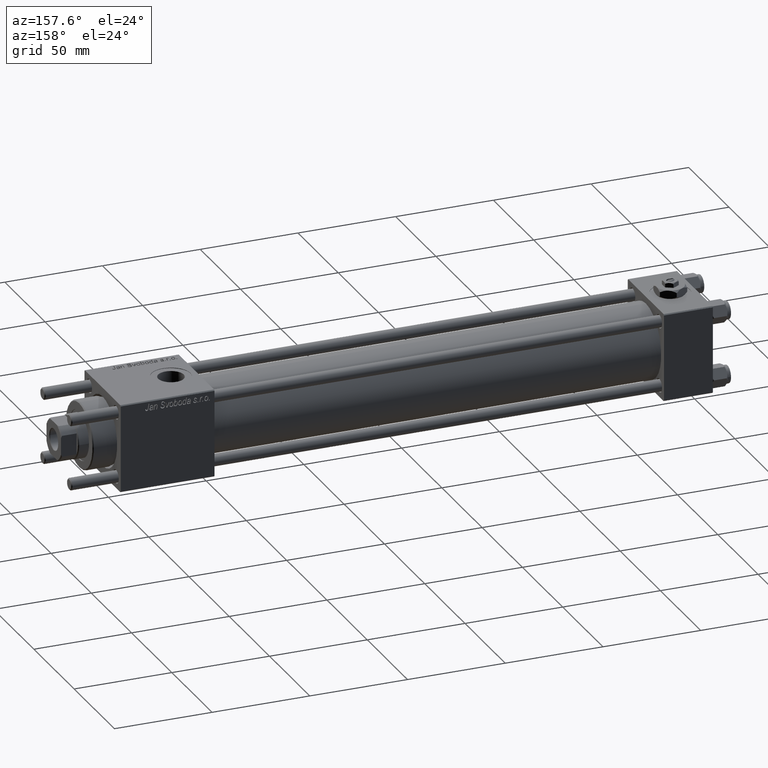
[diagram: clean part render]
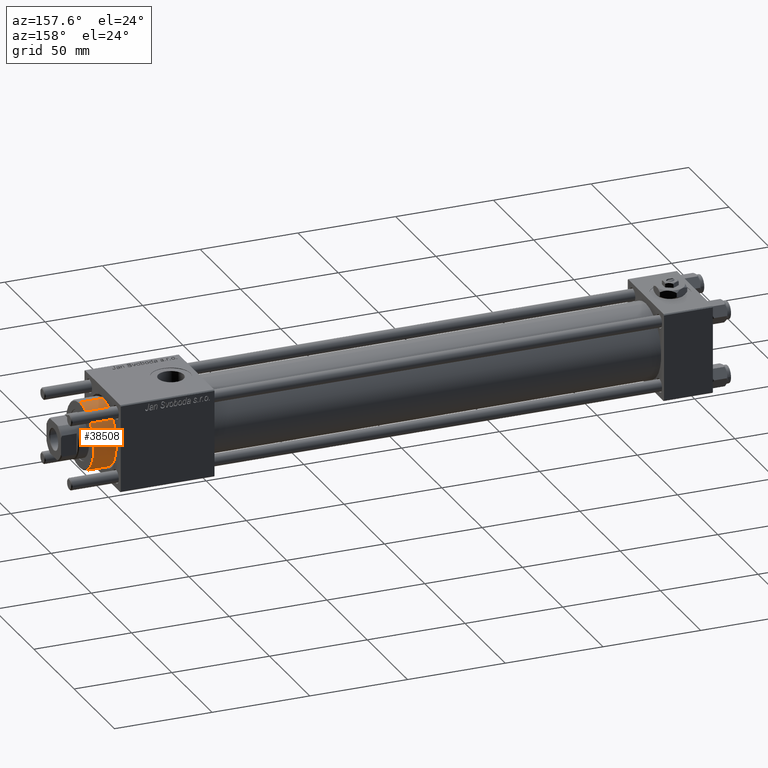
[diagram: same view with one face highlighted and labeled with its STEP entity id]
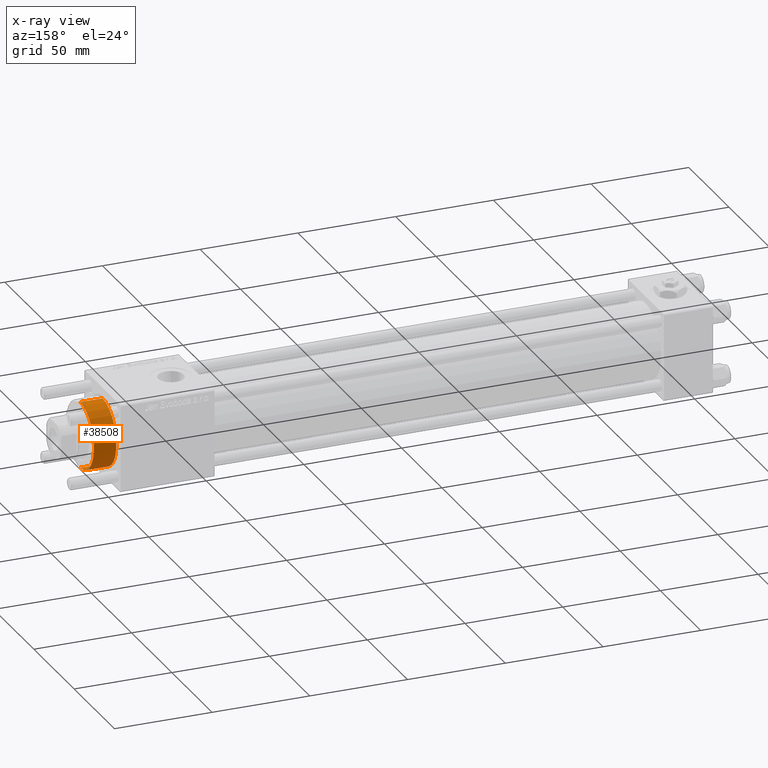
[diagram: x-ray of the same camera — body ghosted, the highlighted face saturated]
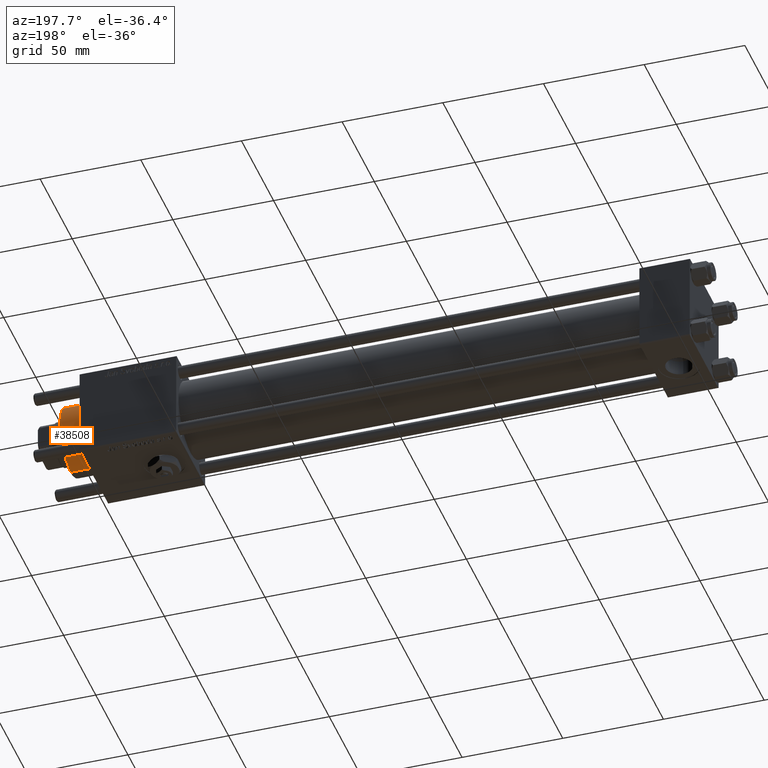
[diagram: same view with one face highlighted and labeled with its STEP entity id]
A machine part, auxiliary view. The second image highlights one B-rep face of the part: STEP entity #38508.
The next image is the same camera in x-ray: the body ghosted, the highlighted face saturated — about 0% of this face is hidden behind the body in this view.
A second angle (auxiliary view) of the same face is appended — the face is thin or edge-on in the first view.
In plain terms, the highlighted cylindrical surface (edge-blend (fillet) strip) has radius 17 mm, axis along (-1, -0, 0).
Its self-contained STEP definition (entity closure, byte-faithful):
#1697 = CIRCLE ( 'NONE', #12502, 17.00000000000000000 ) ;
#2176 = AXIS2_PLACEMENT_3D ( 'NONE', #28615, #5575, #42293 ) ;
#5575 = DIRECTION ( 'NONE',  ( -0.000000000000000000, -0.000000000000000000, -1.000000000000000000 ) ) ;
#6246 = CARTESIAN_POINT ( 'NONE',  ( -17.00000000000000000, 0.000000000000000000, 28.69999999999999929 ) ) ;
#7901 = CARTESIAN_POINT ( 'NONE',  ( 17.00000000000000000, 2.081899558550500280E-15, 40.19999999999999574 ) ) ;
#10122 = CYLINDRICAL_SURFACE ( 'NONE', #2176, 17.00000000000000000 ) ;
#11254 = LINE ( 'NONE', #39476, #44380 ) ;
#11751 = DIRECTION ( 'NONE',  ( 1.000000000000000000, 0.000000000000000000, 0.000000000000000000 ) ) ;
#12502 = AXIS2_PLACEMENT_3D ( 'NONE', #12654, #49077, #11751 ) ;
#12654 = CARTESIAN_POINT ( 'NONE',  ( 0.000000000000000000, 0.000000000000000000, 40.19999999999999574 ) ) ;
#12807 = DIRECTION ( 'NONE',  ( 0.000000000000000000, 0.000000000000000000, 1.000000000000000000 ) ) ;
#15891 = VERTEX_POINT ( 'NONE', #7901 ) ;
#17049 = EDGE_CURVE ( 'NONE', #15891, #36619, #11254, .T. ) ;
#18119 = CARTESIAN_POINT ( 'NONE',  ( -17.00000000000000000, 0.000000000000000000, 40.19999999999999574 ) ) ;
#20010 = EDGE_CURVE ( 'NONE', #39975, #15891, #1697, .T. ) ;
#20385 = DIRECTION ( 'NONE',  ( -0.000000000000000000, -0.000000000000000000, -1.000000000000000000 ) ) ;
#20957 = DIRECTION ( 'NONE',  ( -0.000000000000000000, -0.000000000000000000, -1.000000000000000000 ) ) ;
#21716 = ORIENTED_EDGE ( 'NONE', *, *, #52222, .F. ) ;
#22531 = AXIS2_PLACEMENT_3D ( 'NONE', #35866, #12807, #31908 ) ;
#23514 = CARTESIAN_POINT ( 'NONE',  ( 17.00000000000000000, 2.081899558550500280E-15, 28.69999999999999929 ) ) ;
#24618 = LINE ( 'NONE', #29168, #53864 ) ;
#26143 = EDGE_LOOP ( 'NONE', ( #49053, #33918, #52195, #21716 ) ) ;
#26385 = CIRCLE ( 'NONE', #22531, 17.00000000000000000 ) ;
#28615 = CARTESIAN_POINT ( 'NONE',  ( 0.000000000000000000, 0.000000000000000000, 40.70000000000000284 ) ) ;
#29168 = CARTESIAN_POINT ( 'NONE',  ( -17.00000000000000000, 0.000000000000000000, 40.70000000000000284 ) ) ;
#31908 = DIRECTION ( 'NONE',  ( 1.000000000000000000, 0.000000000000000000, 0.000000000000000000 ) ) ;
#33918 = ORIENTED_EDGE ( 'NONE', *, *, #17049, .T. ) ;
#34168 = EDGE_CURVE ( 'NONE', #36619, #42853, #26385, .T. ) ;
#35866 = CARTESIAN_POINT ( 'NONE',  ( 0.000000000000000000, 0.000000000000000000, 28.69999999999999929 ) ) ;
#36619 = VERTEX_POINT ( 'NONE', #23514 ) ;
#38508 = ADVANCED_FACE ( 'NONE', ( #46857 ), #10122, .T. ) ;
#39476 = CARTESIAN_POINT ( 'NONE',  ( 17.00000000000000000, 2.081899558550500280E-15, 40.70000000000000284 ) ) ;
#39975 = VERTEX_POINT ( 'NONE', #18119 ) ;
#42293 = DIRECTION ( 'NONE',  ( -1.000000000000000000, 0.000000000000000000, 0.000000000000000000 ) ) ;
#42853 = VERTEX_POINT ( 'NONE', #6246 ) ;
#44380 = VECTOR ( 'NONE', #20957, 1000.000000000000000 ) ;
#46857 = FACE_OUTER_BOUND ( 'NONE', #26143, .T. ) ;
#49053 = ORIENTED_EDGE ( 'NONE', *, *, #20010, .T. ) ;
#49077 = DIRECTION ( 'NONE',  ( 0.000000000000000000, 0.000000000000000000, -1.000000000000000000 ) ) ;
#52195 = ORIENTED_EDGE ( 'NONE', *, *, #34168, .T. ) ;
#52222 = EDGE_CURVE ( 'NONE', #39975, #42853, #24618, .T. ) ;
#53864 = VECTOR ( 'NONE', #20385, 1000.000000000000000 ) ;